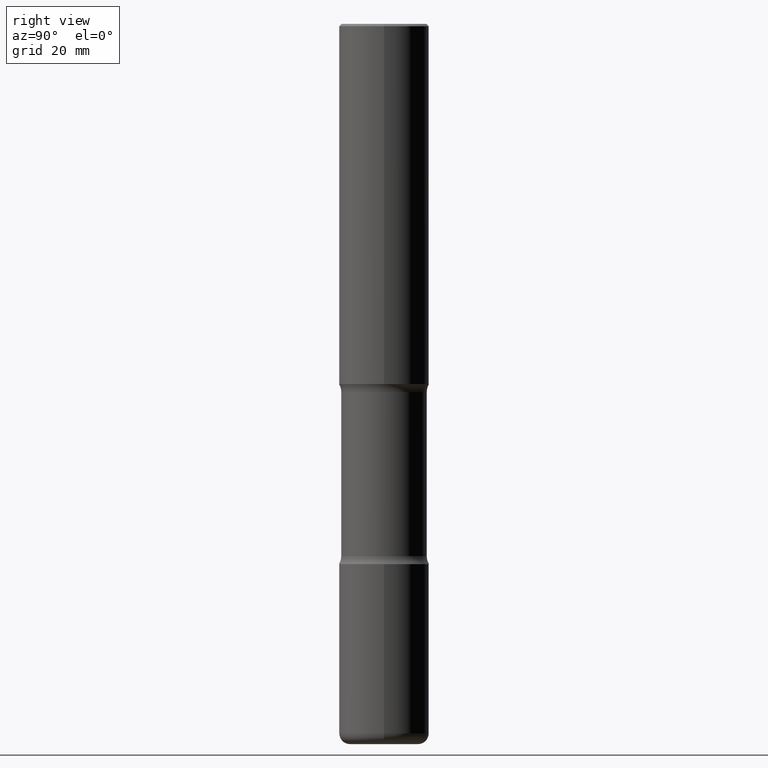
[diagram: clean part render]
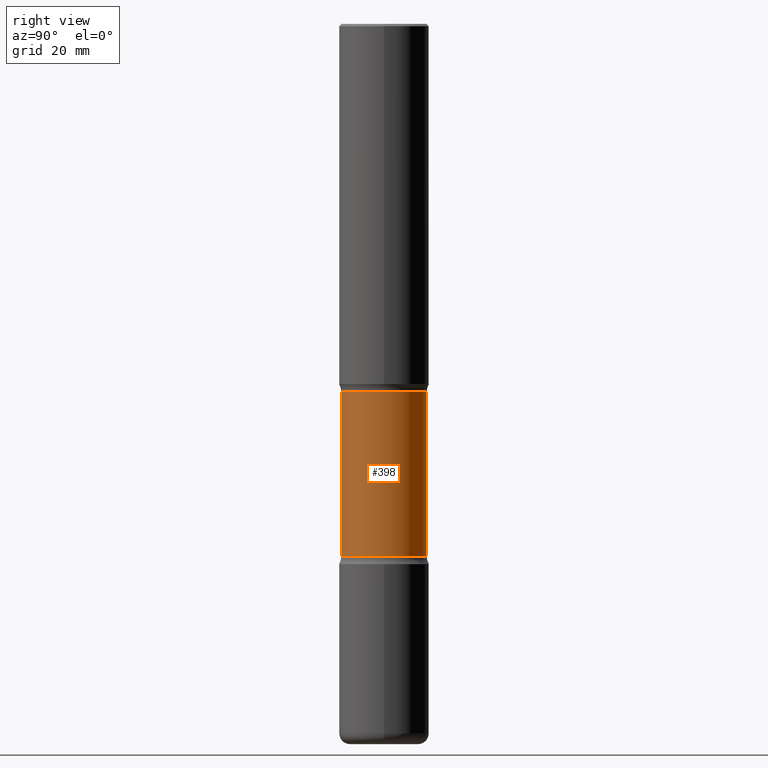
[diagram: same view with one face highlighted and labeled with its STEP entity id]
A machine part, right view. The second image highlights one B-rep face of the part: STEP entity #398.
In plain terms, the highlighted cylindrical surface (partial cylindrical patch) has radius 9.0488 mm, axis along (0, -0, -1).
Its self-contained STEP definition (entity closure, byte-faithful):
#2 = CARTESIAN_POINT ( 'NONE',  ( -2.444052411705960129E-15, -0.3562500000000208278, -5.999999999999998224 ) ) ;
#9 = EDGE_LOOP ( 'NONE', ( #223, #460, #160, #371 ) ) ;
#66 = CARTESIAN_POINT ( 'NONE',  ( 2.487680453925879638E-15, 0.3562499999999791389, -6.000000000000000888 ) ) ;
#74 = CARTESIAN_POINT ( 'NONE',  ( 1.083944695982298980E-28, -1.548767942740887449E-14, -4.434152164044669497 ) ) ;
#109 = LINE ( 'NONE', #66, #437 ) ;
#128 = CARTESIAN_POINT ( 'NONE',  ( 2.487680453925806274E-15, 0.3562499999999891309, -3.065847835955330503 ) ) ;
#131 = LINE ( 'NONE', #2, #144 ) ;
#134 = EDGE_CURVE ( 'NONE', #337, #502, #109, .T. ) ;
#144 = VECTOR ( 'NONE', #172, 39.37007874015748143 ) ;
#156 = CARTESIAN_POINT ( 'NONE',  ( 7.407401089244291879E-29, -1.083328454578828421E-14, -3.065847835955329614 ) ) ;
#160 = ORIENTED_EDGE ( 'NONE', *, *, #169, .F. ) ;
#169 = EDGE_CURVE ( 'NONE', #502, #538, #395, .T. ) ;
#172 = DIRECTION ( 'NONE',  ( 2.508247471065963170E-29, -3.401578717594097873E-15, -1.000000000000000000 ) ) ;
#181 = EDGE_CURVE ( 'NONE', #337, #249, #457, .T. ) ;
#204 = DIRECTION ( 'NONE',  ( 2.508247471065963170E-29, -3.401578717594097873E-15, -1.000000000000000000 ) ) ;
#213 = CYLINDRICAL_SURFACE ( 'NONE', #469, 0.3562500000000000111 ) ;
#215 = DIRECTION ( 'NONE',  ( 6.982962677686265133E-15, 1.000000000000000000, -3.067338098149347905E-15 ) ) ;
#223 = ORIENTED_EDGE ( 'NONE', *, *, #181, .T. ) ;
#234 = CARTESIAN_POINT ( 'NONE',  ( 2.487680453925840195E-15, 0.3562499999999844680, -4.434152164044670386 ) ) ;
#235 = DIRECTION ( 'NONE',  ( 2.508247471065963170E-29, -3.401578717594097873E-15, -1.000000000000000000 ) ) ;
#242 = DIRECTION ( 'NONE',  ( 6.982962677686265133E-15, 1.000000000000000000, -3.067338098149347905E-15 ) ) ;
#249 = VERTEX_POINT ( 'NONE', #296 ) ;
#251 = DIRECTION ( 'NONE',  ( 6.982962677686265133E-15, 1.000000000000000000, -3.067338098149347905E-15 ) ) ;
#296 = CARTESIAN_POINT ( 'NONE',  ( -2.508369580435144205E-15, -0.3562500000000108358, -3.065847835955328282 ) ) ;
#307 = CARTESIAN_POINT ( 'NONE',  ( 1.476698083443205790E-28, -2.081403410118529621E-14, -5.999999999999999112 ) ) ;
#337 = VERTEX_POINT ( 'NONE', #128 ) ;
#338 = DIRECTION ( 'NONE',  ( 2.508247471065963170E-29, -3.401578717594097873E-15, -1.000000000000000000 ) ) ;
#371 = ORIENTED_EDGE ( 'NONE', *, *, #134, .F. ) ;
#385 = DIRECTION ( 'NONE',  ( 2.508247471065963170E-29, -3.401578717594097873E-15, -1.000000000000000000 ) ) ;
#395 = CIRCLE ( 'NONE', #520, 0.3562500000000000111 ) ;
#398 = ADVANCED_FACE ( 'NONE', ( #433 ), #213, .T. ) ;
#409 = EDGE_CURVE ( 'NONE', #249, #538, #131, .T. ) ;
#433 = FACE_OUTER_BOUND ( 'NONE', #9, .T. ) ;
#437 = VECTOR ( 'NONE', #235, 39.37007874015748143 ) ;
#457 = CIRCLE ( 'NONE', #534, 0.3562500000000000111 ) ;
#460 = ORIENTED_EDGE ( 'NONE', *, *, #409, .T. ) ;
#469 = AXIS2_PLACEMENT_3D ( 'NONE', #307, #385, #215 ) ;
#496 = CARTESIAN_POINT ( 'NONE',  ( -2.508369580435107128E-15, -0.3562500000000154987, -4.434152164044668609 ) ) ;
#502 = VERTEX_POINT ( 'NONE', #234 ) ;
#520 = AXIS2_PLACEMENT_3D ( 'NONE', #74, #338, #242 ) ;
#534 = AXIS2_PLACEMENT_3D ( 'NONE', #156, #204, #251 ) ;
#538 = VERTEX_POINT ( 'NONE', #496 ) ;